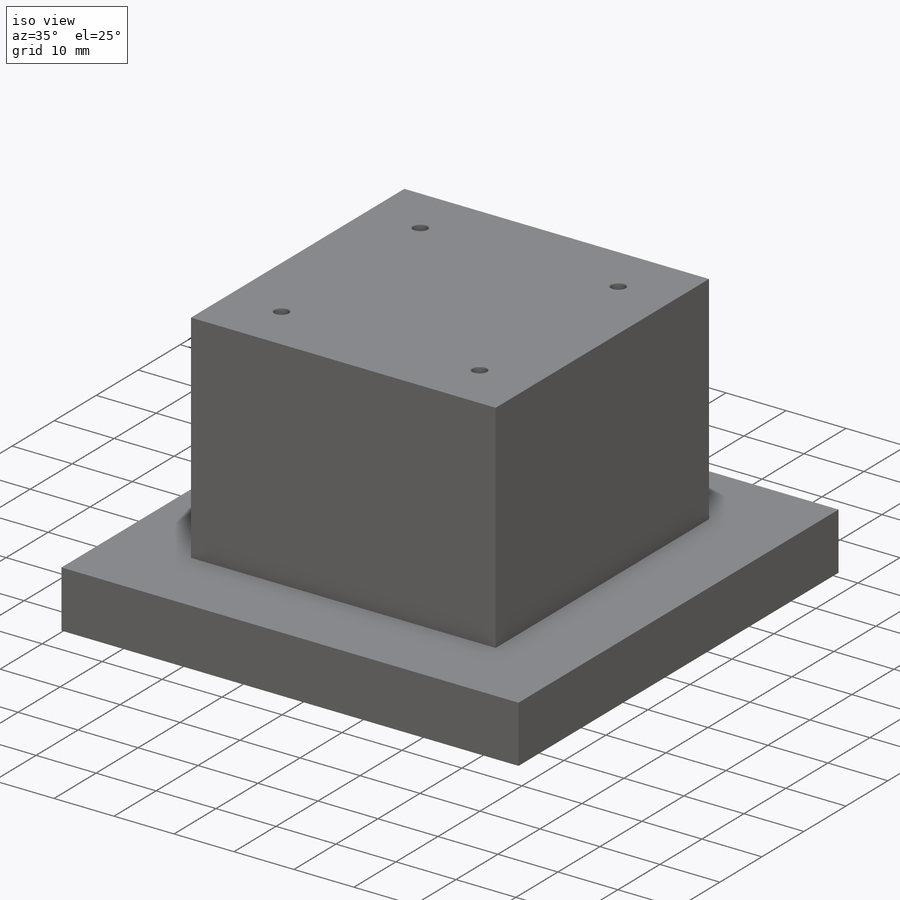
[diagram: iso view]
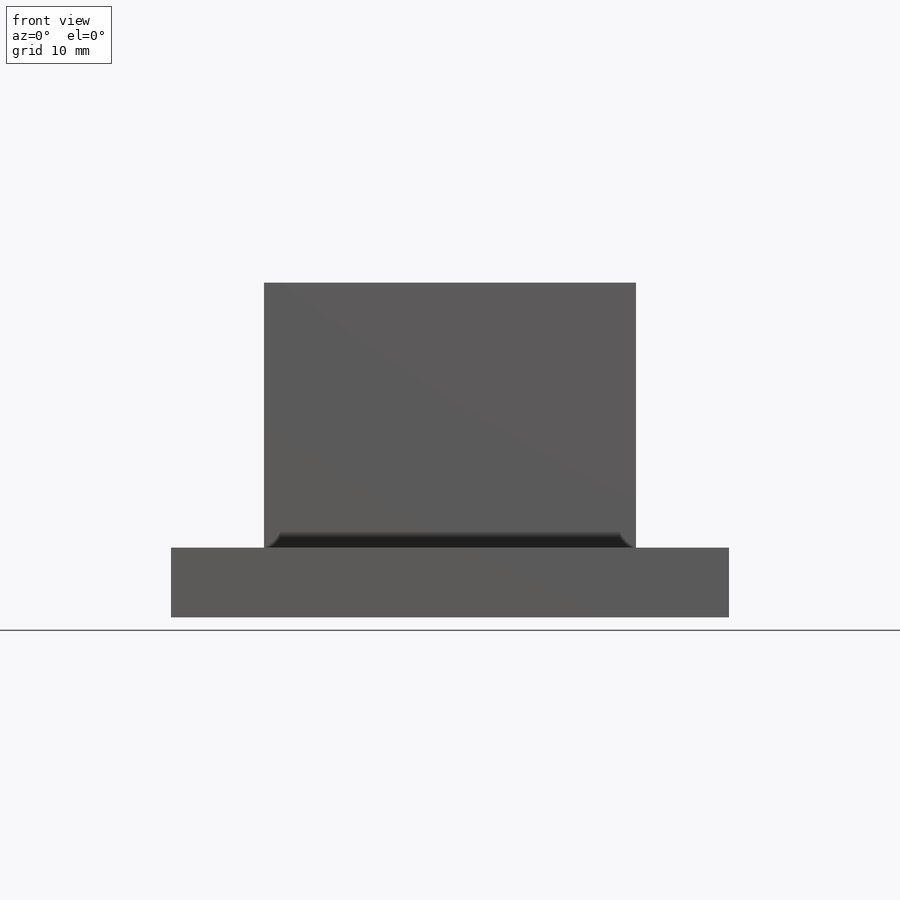
[diagram: front view]
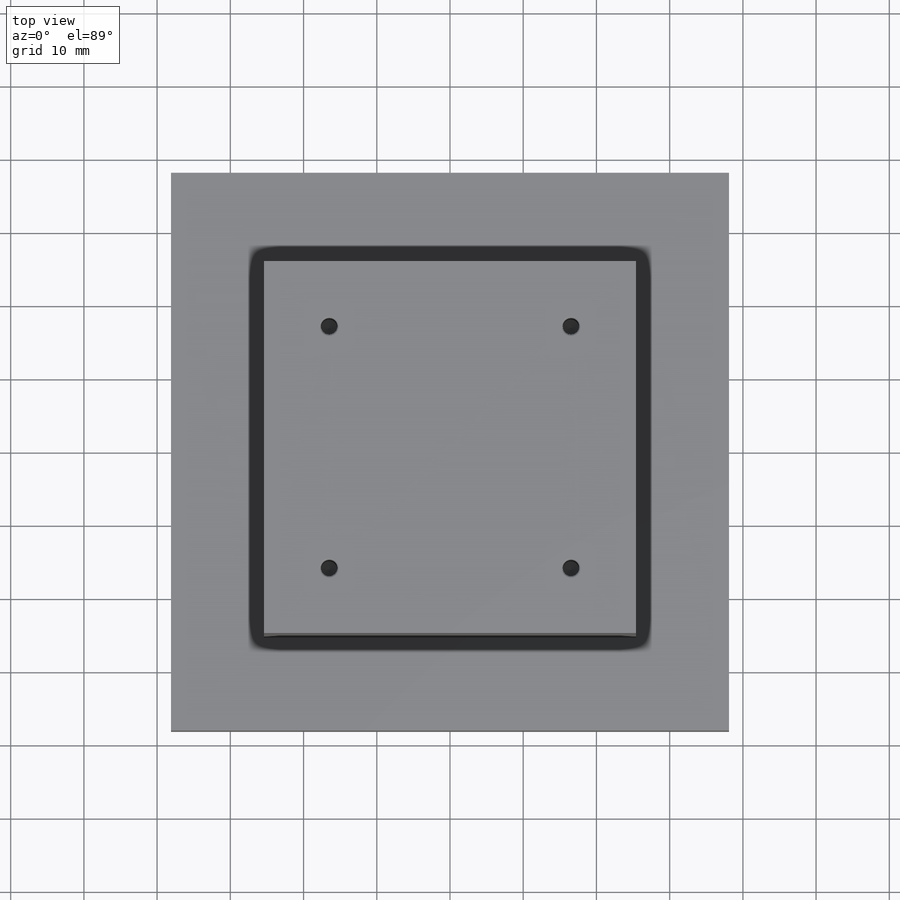
[diagram: top view]
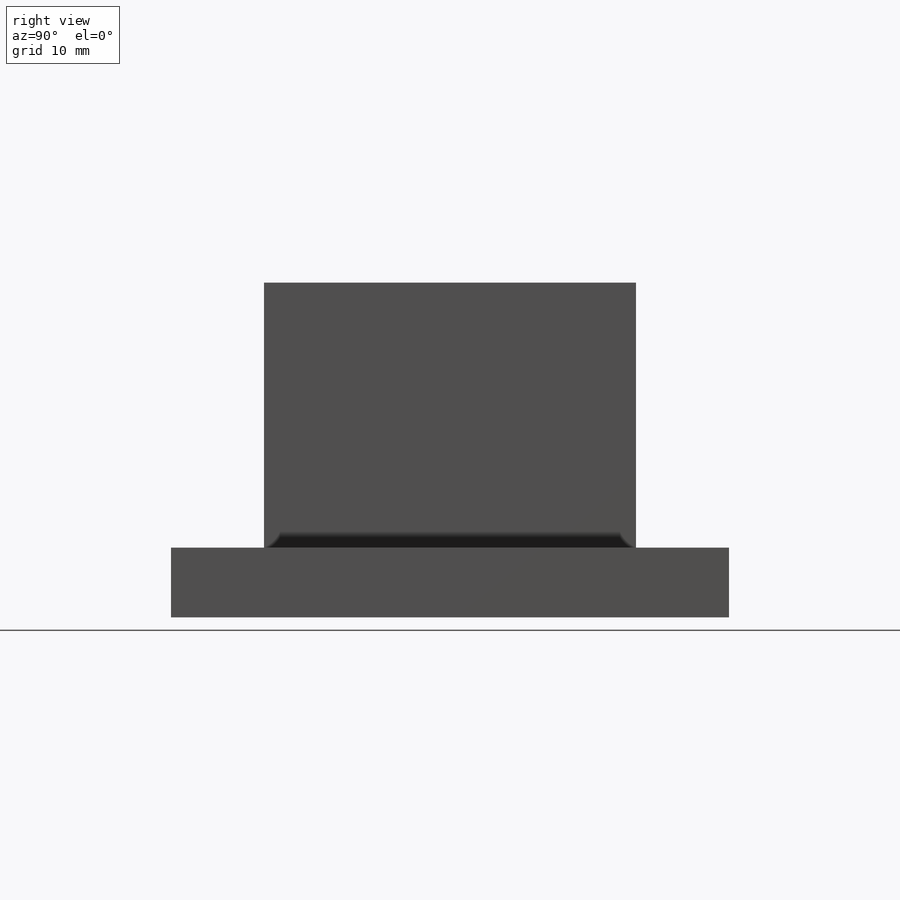
[diagram: right view]
SOLIDWORKS PART (.sldprt)
format: sldprt  version: not decoded by parser v0  size: 261,632 bytes
history: native  units: mm
features: sketch x6, thread x4, extrude x2, material x1, cut_extrude x1, hole x1, fillet x1 + 1 further entry (+10 scaffold rows collapsed)
feature tree (27):
  scaffold x10  (default folders/planes/origin — collapsed)
  material  "6061-T6 (SS)"
  "Origin"  ID=392984584
  sketch  "Sketch1"  dims[c1.D1=57.15mm c1.D2=38.1mm c1.D3=44.45mm c2.D1=38.1mm]
  extrude  "Extrude1"  Depth=9.525mm
  sketch  "Sketch2"  dims[c1.D1=12.7mm c1.D2=12.7mm c2.D1=3.81mm c2.D2=3.81mm]
  cut_extrude  "Extrude2"  Depth=0.79375mm
  sketch  "Sketch6"  dims[D1=50.8mm D2=50.8mm]
  extrude  "Extrude4"  Depth=36.195mm
  sketch  "Sketch7"  dims[D1=33.02mm D2=33.02mm]
  hole  "#4-40 Tapped Hole1"  Diameter=2.2606mm Depth=12.7mm
  sketch  "3DSketch1"
  sketch  "Sketch8"  dims[hole-wizard template sketch: 47 standard entries collapsed; hole parameters kept: c15.Tap Drill Depth=12.7mm c15.D3=~14.816244mm c15.Drill Angle=118.0deg]
  thread  "Hole Thread1"  Diameter=10.7696mm  [1 undecoded]
  thread  "Hole Thread2"  Diameter=10.7696mm  [1 undecoded]
  thread  "Hole Thread3"  Diameter=10.7696mm  [1 undecoded]
  thread  "Hole Thread4"  Diameter=10.7696mm  [1 undecoded]
  fillet  "Fillet1"  Radius=0.254mm
decode coverage: 14 of 15 modeling features carry decoded parameters; 1 rows unclassified (native names shown)
note: ~ marks probable driven/reference dimensions
note: 4 parameter values undecoded
note: suppression state not decoded; provenance and decode notes live in map.json
